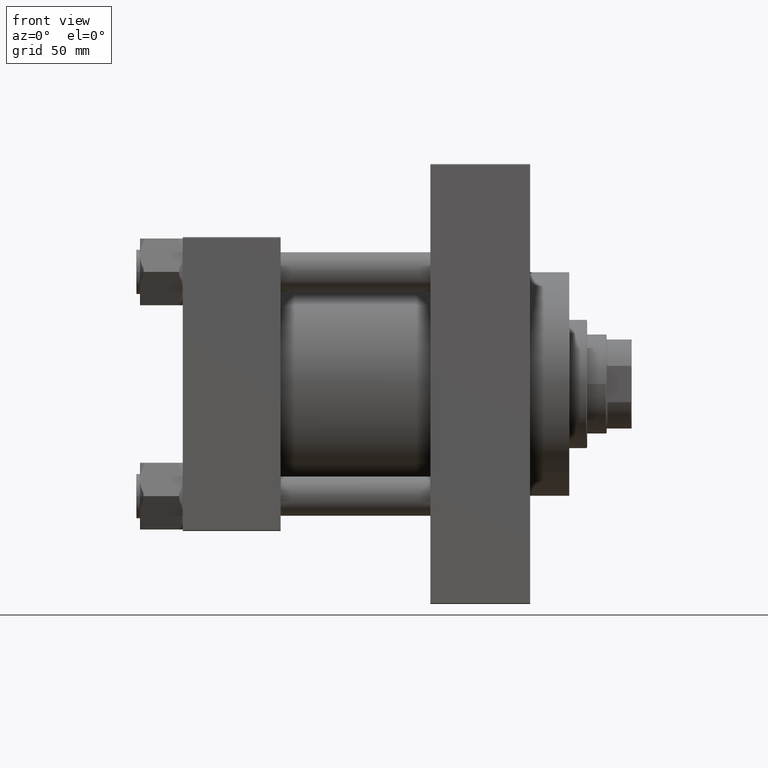
[diagram: clean part render]
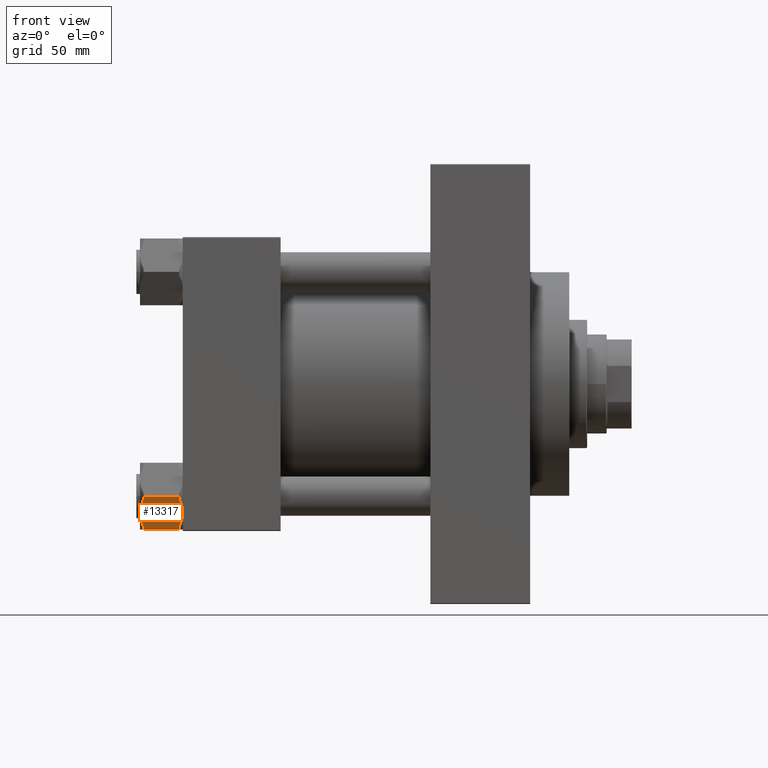
[diagram: same view with one face highlighted and labeled with its STEP entity id]
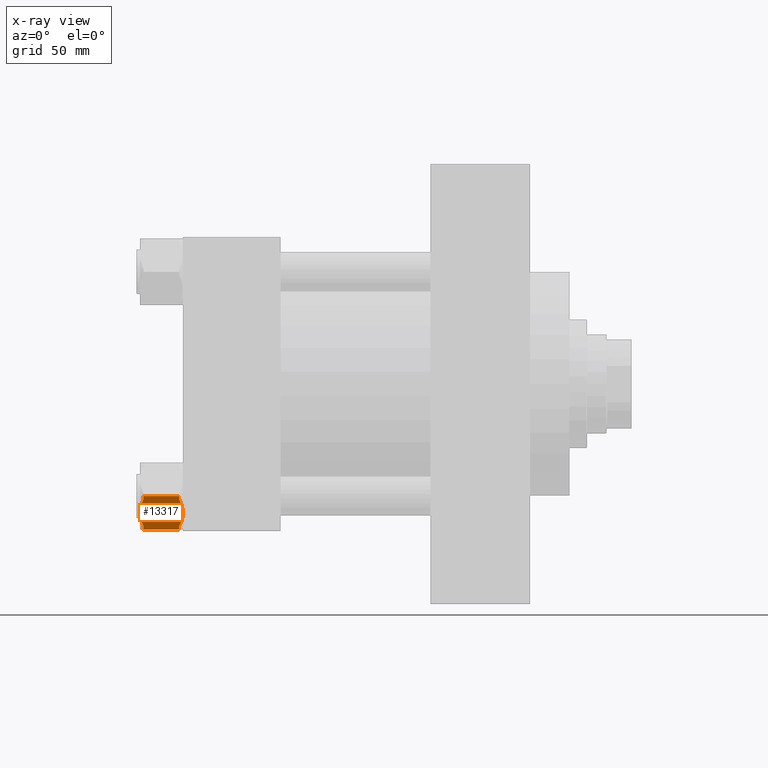
[diagram: x-ray of the same camera — body ghosted, the highlighted face saturated]
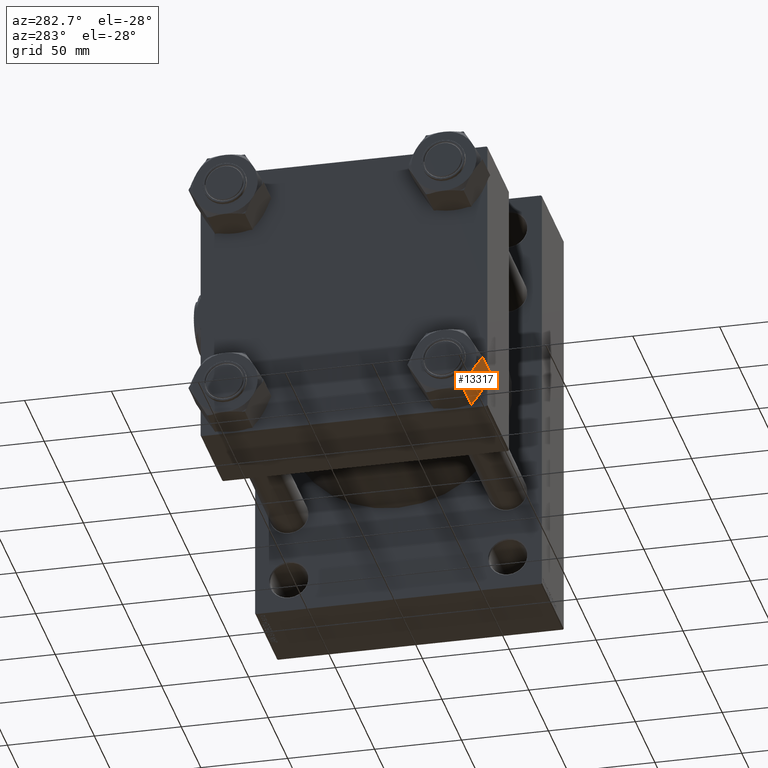
[diagram: same view with one face highlighted and labeled with its STEP entity id]
A machine part, front view. The second image highlights one B-rep face of the part: STEP entity #13317.
The next image is the same camera in x-ray: the body ghosted, the highlighted face saturated — about 0% of this face is hidden behind the body in this view.
A second angle (auxiliary view) of the same face is appended — the face is thin or edge-on in the first view.
In plain terms, the highlighted planar face has unit normal (0, 0.866, 0.5).
Its self-contained STEP definition (entity closure, byte-faithful):
#380 = CARTESIAN_POINT ( 'NONE',  ( 12.12795923008832943, -16.44069688100224269, -22.30351413196914834 ) ) ;
#1136 = ORIENTED_EDGE ( 'NONE', *, *, #10044, .F. ) ;
#1701 = CARTESIAN_POINT ( 'NONE',  ( 14.68383736039110410, -12.01378610136367620, -0.2338220771833908751 ) ) ;
#2031 = DIRECTION ( 'NONE',  ( -0.8660254037844385966, 0.5000000000000001110, 0.000000000000000000 ) ) ;
#2355 = DIRECTION ( 'NONE',  ( -0.000000000000000000, -0.000000000000000000, 1.000000000000000000 ) ) ;
#3045 = EDGE_CURVE ( 'NONE', #38247, #20189, #29787, .T. ) ;
#3128 = EDGE_CURVE ( 'NONE', #21240, #20189, #33524, .T. ) ;
#3719 = AXIS2_PLACEMENT_3D ( 'NONE', #28558, #2031, #21040 ) ;
#3983 = CARTESIAN_POINT ( 'NONE',  ( 16.98310883762007961, -8.031331082409140620, 5.869938324472301350E-15 ) ) ;
#5778 = CARTESIAN_POINT ( 'NONE',  ( 16.40715167818696330, -9.028918145530351325, -24.00000000000001421 ) ) ;
#6864 = ORIENTED_EDGE ( 'NONE', *, *, #3128, .F. ) ;
#7924 = LINE ( 'NONE', #22462, #48831 ) ;
#8376 = ORIENTED_EDGE ( 'NONE', *, *, #3045, .T. ) ;
#8527 = CARTESIAN_POINT ( 'NONE',  ( 16.60104632518793011, -8.693082765609048579, -23.98802662332919056 ) ) ;
#9522 = CARTESIAN_POINT ( 'NONE',  ( 17.74616263960890805, -6.709683128455894874, -23.76617792281660968 ) ) ;
#9695 = CARTESIAN_POINT ( 'NONE',  ( 13.20154625327794129, -14.58118961049120443, -0.8936198542777856746 ) ) ;
#9999 = B_SPLINE_CURVE_WITH_KNOTS ( 'NONE', 3,
 ( #13263, #47064, #28565, #31557, #9522, #24802, #40062, #8527, #5778, #21046 ),
 .UNSPECIFIED., .F., .F.,
 ( 4, 2, 2, 2, 4 ),
 ( 5.007809737494677193E-07, 0.004555175037830398385, 0.006832512166258724456, 0.007971180730472886625, 0.009109849294687048793 ),
 .UNSPECIFIED. ) ;
#10044 = EDGE_CURVE ( 'NONE', #41800, #44217, #9999, .T. ) ;
#10468 = B_SPLINE_CURVE_WITH_KNOTS ( 'NONE', 3,
 ( #19489, #3983, #22769, #49536, #19733, #34998, #45544, #31009 ),
 .UNSPECIFIED., .F., .F.,
 ( 4, 2, 2, 4 ),
 ( 0.009109849294687047058, 0.01366157320126712427, 0.01593743515455716547, 0.01821329710784720321 ),
 .UNSPECIFIED. ) ;
#11514 = LINE ( 'NONE', #26558, #48601 ) ;
#11864 = CARTESIAN_POINT ( 'NONE',  ( 15.44689116237993254, -10.69213814741043223, -24.00000000000001066 ) ) ;
#13065 = CARTESIAN_POINT ( 'NONE',  ( 21.62000000000000810, -3.114209406997181913E-15, -2.000000000000001776 ) ) ;
#13257 = PLANE ( 'NONE',  #3719 ) ;
#13263 = CARTESIAN_POINT ( 'NONE',  ( 20.65611126068912640, -1.669504269329957324, -22.00000000000000000 ) ) ;
#13317 = ADVANCED_FACE ( 'NONE', ( #17283 ), #13257, .F. ) ;
#13387 = CARTESIAN_POINT ( 'NONE',  ( 11.77388873931088042, -17.05396496048961552, -22.00000000000000000 ) ) ;
#14325 = CARTESIAN_POINT ( 'NONE',  ( 21.62000000000000810, -3.114209406997181913E-15, -22.00000000000000000 ) ) ;
#14414 = ORIENTED_EDGE ( 'NONE', *, *, #37725, .F. ) ;
#15379 = CARTESIAN_POINT ( 'NONE',  ( 13.58342913161266452, -13.91974906267481593, -23.28765129395945621 ) ) ;
#15668 = ORIENTED_EDGE ( 'NONE', *, *, #19828, .F. ) ;
#16164 = EDGE_LOOP ( 'NONE', ( #15668, #8376, #6864, #44700, #36434, #20692, #37416, #14414, #44999, #1136 ) ) ;
#17091 = CARTESIAN_POINT ( 'NONE',  ( 21.62000000000000810, -3.114209406997181913E-15, -24.00000000000000000 ) ) ;
#17283 = FACE_OUTER_BOUND ( 'NONE', #16164, .T. ) ;
#17960 = CARTESIAN_POINT ( 'NONE',  ( 15.25296234352183511, -11.02803271472448365, -0.09483449834988727511 ) ) ;
#18368 = EDGE_CURVE ( 'NONE', #44217, #37957, #46443, .T. ) ;
#18844 = CARTESIAN_POINT ( 'NONE',  ( 21.62000000000000810, -3.114209406997181913E-15, -2.000000000000001776 ) ) ;
#19367 = CARTESIAN_POINT ( 'NONE',  ( 20.65611126068912640, -1.669504269329957324, -22.00000000000000000 ) ) ;
#19489 = CARTESIAN_POINT ( 'NONE',  ( 16.21500000000001052, -9.361734614909789087, 0.000000000000000000 ) ) ;
#19733 = CARTESIAN_POINT ( 'NONE',  ( 19.21365948880452734, -4.167904025701849591, -0.9250850388960960569 ) ) ;
#19828 = EDGE_CURVE ( 'NONE', #38247, #41800, #11514, .T. ) ;
#20189 = VERTEX_POINT ( 'NONE', #35704 ) ;
#20692 = ORIENTED_EDGE ( 'NONE', *, *, #43576, .F. ) ;
#20838 = DIRECTION ( 'NONE',  ( -0.000000000000000000, -0.000000000000000000, 1.000000000000000000 ) ) ;
#21040 = DIRECTION ( 'NONE',  ( -0.5000000000000001110, -0.8660254037844385966, 0.000000000000000000 ) ) ;
#21046 = CARTESIAN_POINT ( 'NONE',  ( 16.21500000000001052, -9.361734614909789087, -24.00000000000000000 ) ) ;
#21240 = VERTEX_POINT ( 'NONE', #38454 ) ;
#21477 = CARTESIAN_POINT ( 'NONE',  ( 16.02284832181305063, -9.694551084289221521, 6.135247866506732258E-15 ) ) ;
#22462 = CARTESIAN_POINT ( 'NONE',  ( 21.62000000000000810, -3.114209406997181913E-15, -22.00000000000000000 ) ) ;
#22769 = CARTESIAN_POINT ( 'NONE',  ( 17.73599980468855009, -6.727285674886891442, -0.1908188403547892431 ) ) ;
#22854 = DIRECTION ( 'NONE',  ( 0.5000000000000001110, 0.8660254037844385966, -0.000000000000000000 ) ) ;
#24802 = CARTESIAN_POINT ( 'NONE',  ( 17.17703765647819125, -7.695436515095088303, -23.90516550165012433 ) ) ;
#25533 = CARTESIAN_POINT ( 'NONE',  ( 10.81000000000000405, -18.72346922981956752, -2.000000000000001776 ) ) ;
#26460 = VECTOR ( 'NONE', #2355, 1000.000000000000000 ) ;
#26558 = CARTESIAN_POINT ( 'NONE',  ( 21.62000000000000810, -3.114209406997181913E-15, -22.00000000000000000 ) ) ;
#26599 = CARTESIAN_POINT ( 'NONE',  ( 11.77388873931088220, -17.05396496048960842, -2.000000000000000000 ) ) ;
#26682 = CARTESIAN_POINT ( 'NONE',  ( 12.48753218109485097, -15.81789826083146089, -22.58212083167677875 ) ) ;
#28125 = LINE ( 'NONE', #47647, #26460 ) ;
#28558 = CARTESIAN_POINT ( 'NONE',  ( 21.62000000000000810, -3.114209406997181913E-15, -24.00000000000000000 ) ) ;
#28565 = CARTESIAN_POINT ( 'NONE',  ( 19.22845374672207797, -4.142279619328368412, -23.10638014572221977 ) ) ;
#28737 = CARTESIAN_POINT ( 'NONE',  ( 14.30978229978947525, -12.66166847115395377, -0.3703068632035613761 ) ) ;
#28985 = CARTESIAN_POINT ( 'NONE',  ( 16.21500000000001052, -9.361734614909789087, 0.000000000000000000 ) ) ;
#29341 = EDGE_CURVE ( 'NONE', #42434, #21240, #10468, .T. ) ;
#29507 = CARTESIAN_POINT ( 'NONE',  ( 10.81000000000000405, -18.72346922981956752, -22.00000000000000000 ) ) ;
#29787 = LINE ( 'NONE', #17091, #36274 ) ;
#30186 = CARTESIAN_POINT ( 'NONE',  ( 13.21634051119548836, -14.55556520411772858, -23.07491496110390727 ) ) ;
#31009 = CARTESIAN_POINT ( 'NONE',  ( 20.65611126068912284, -1.669504269329962431, -2.000000000000000000 ) ) ;
#31557 = CARTESIAN_POINT ( 'NONE',  ( 18.12021770021053868, -6.061800758665613742, -23.62969313679643690 ) ) ;
#32082 = VERTEX_POINT ( 'NONE', #25533 ) ;
#33524 = LINE ( 'NONE', #13065, #33849 ) ;
#33615 = LINE ( 'NONE', #18844, #42631 ) ;
#33849 = VECTOR ( 'NONE', #47368, 1000.000000000000000 ) ;
#34396 = CARTESIAN_POINT ( 'NONE',  ( 16.21500000000001052, -9.361734614909789087, 0.000000000000000000 ) ) ;
#34657 = CARTESIAN_POINT ( 'NONE',  ( 14.69400019531145851, -11.99618355493268851, -23.80918115964522030 ) ) ;
#34998 = CARTESIAN_POINT ( 'NONE',  ( 19.94246781890516118, -2.905570968988113734, -1.417879168323223915 ) ) ;
#35704 = CARTESIAN_POINT ( 'NONE',  ( 21.62000000000000810, -3.114209406997181913E-15, -2.000000000000001776 ) ) ;
#36274 = VECTOR ( 'NONE', #20838, 1000.000000000000000 ) ;
#36434 = ORIENTED_EDGE ( 'NONE', *, *, #36876, .F. ) ;
#36722 = CARTESIAN_POINT ( 'NONE',  ( 11.77388873931088220, -17.05396496048960842, -2.000000000000000000 ) ) ;
#36876 = EDGE_CURVE ( 'NONE', #47042, #42434, #47149, .T. ) ;
#37416 = ORIENTED_EDGE ( 'NONE', *, *, #38191, .F. ) ;
#37704 = DIRECTION ( 'NONE',  ( -0.5000000000000001110, -0.8660254037844385966, 0.000000000000000000 ) ) ;
#37725 = EDGE_CURVE ( 'NONE', #37957, #46495, #7924, .T. ) ;
#37957 = VERTEX_POINT ( 'NONE', #13387 ) ;
#38191 = EDGE_CURVE ( 'NONE', #46495, #32082, #28125, .T. ) ;
#38247 = VERTEX_POINT ( 'NONE', #14325 ) ;
#38454 = CARTESIAN_POINT ( 'NONE',  ( 20.65611126068912284, -1.669504269329962431, -2.000000000000000000 ) ) ;
#40062 = CARTESIAN_POINT ( 'NONE',  ( 16.98598932500589243, -8.026341931906364024, -23.94054132287643810 ) ) ;
#41439 = CARTESIAN_POINT ( 'NONE',  ( 16.21500000000001052, -9.361734614909789087, -24.00000000000000000 ) ) ;
#41800 = VERTEX_POINT ( 'NONE', #19367 ) ;
#42434 = VERTEX_POINT ( 'NONE', #34396 ) ;
#42631 = VECTOR ( 'NONE', #22854, 1000.000000000000000 ) ;
#43576 = EDGE_CURVE ( 'NONE', #32082, #47042, #33615, .T. ) ;
#43886 = CARTESIAN_POINT ( 'NONE',  ( 16.21500000000001052, -9.361734614909789087, -24.00000000000000000 ) ) ;
#44217 = VERTEX_POINT ( 'NONE', #43886 ) ;
#44265 = CARTESIAN_POINT ( 'NONE',  ( 15.44401067499412505, -10.69712729791320704, -0.05945867712356139867 ) ) ;
#44700 = ORIENTED_EDGE ( 'NONE', *, *, #29341, .F. ) ;
#44999 = ORIENTED_EDGE ( 'NONE', *, *, #18368, .F. ) ;
#45544 = CARTESIAN_POINT ( 'NONE',  ( 20.30204076991168805, -2.282772348817345698, -1.696485868030862987 ) ) ;
#46181 = CARTESIAN_POINT ( 'NONE',  ( 11.77388873931088042, -17.05396496048961552, -22.00000000000000000 ) ) ;
#46443 = B_SPLINE_CURVE_WITH_KNOTS ( 'NONE', 3,
 ( #41439, #11864, #34657, #15379, #30186, #26682, #380, #46181 ),
 .UNSPECIFIED., .F., .F.,
 ( 4, 2, 2, 4 ),
 ( 0.009109849294687048793, 0.01366157320126713121, 0.01593743515455717241, 0.01821329710784721362 ),
 .UNSPECIFIED. ) ;
#46495 = VERTEX_POINT ( 'NONE', #29507 ) ;
#47042 = VERTEX_POINT ( 'NONE', #26599 ) ;
#47064 = CARTESIAN_POINT ( 'NONE',  ( 19.94878361794605226, -2.894631684158890383, -22.60633105863623271 ) ) ;
#47149 = B_SPLINE_CURVE_WITH_KNOTS ( 'NONE', 3,
 ( #36722, #48249, #9695, #28737, #1701, #17960, #44265, #47753, #21477, #28985 ),
 .UNSPECIFIED., .F., .F.,
 ( 4, 2, 2, 2, 4 ),
 ( 5.007809737529432014E-07, 0.004555175037830399253, 0.006832512166258723589, 0.007971180730472884890, 0.009109849294687047058 ),
 .UNSPECIFIED. ) ;
#47368 = DIRECTION ( 'NONE',  ( 0.5000000000000001110, 0.8660254037844385966, -0.000000000000000000 ) ) ;
#47647 = CARTESIAN_POINT ( 'NONE',  ( 10.81000000000000405, -18.72346922981956752, -24.00000000000000000 ) ) ;
#47753 = CARTESIAN_POINT ( 'NONE',  ( 15.82895367481208382, -10.03038646421051716, -0.01197337667081903138 ) ) ;
#48249 = CARTESIAN_POINT ( 'NONE',  ( 12.48121638205395989, -15.82883754566067758, -1.393668941363772618 ) ) ;
#48601 = VECTOR ( 'NONE', #49095, 1000.000000000000000 ) ;
#48831 = VECTOR ( 'NONE', #37704, 1000.000000000000000 ) ;
#49095 = DIRECTION ( 'NONE',  ( -0.5000000000000001110, -0.8660254037844385966, 0.000000000000000000 ) ) ;
#49536 = CARTESIAN_POINT ( 'NONE',  ( 18.84657086838734585, -4.803720167144762243, -0.7123487060405504501 ) ) ;